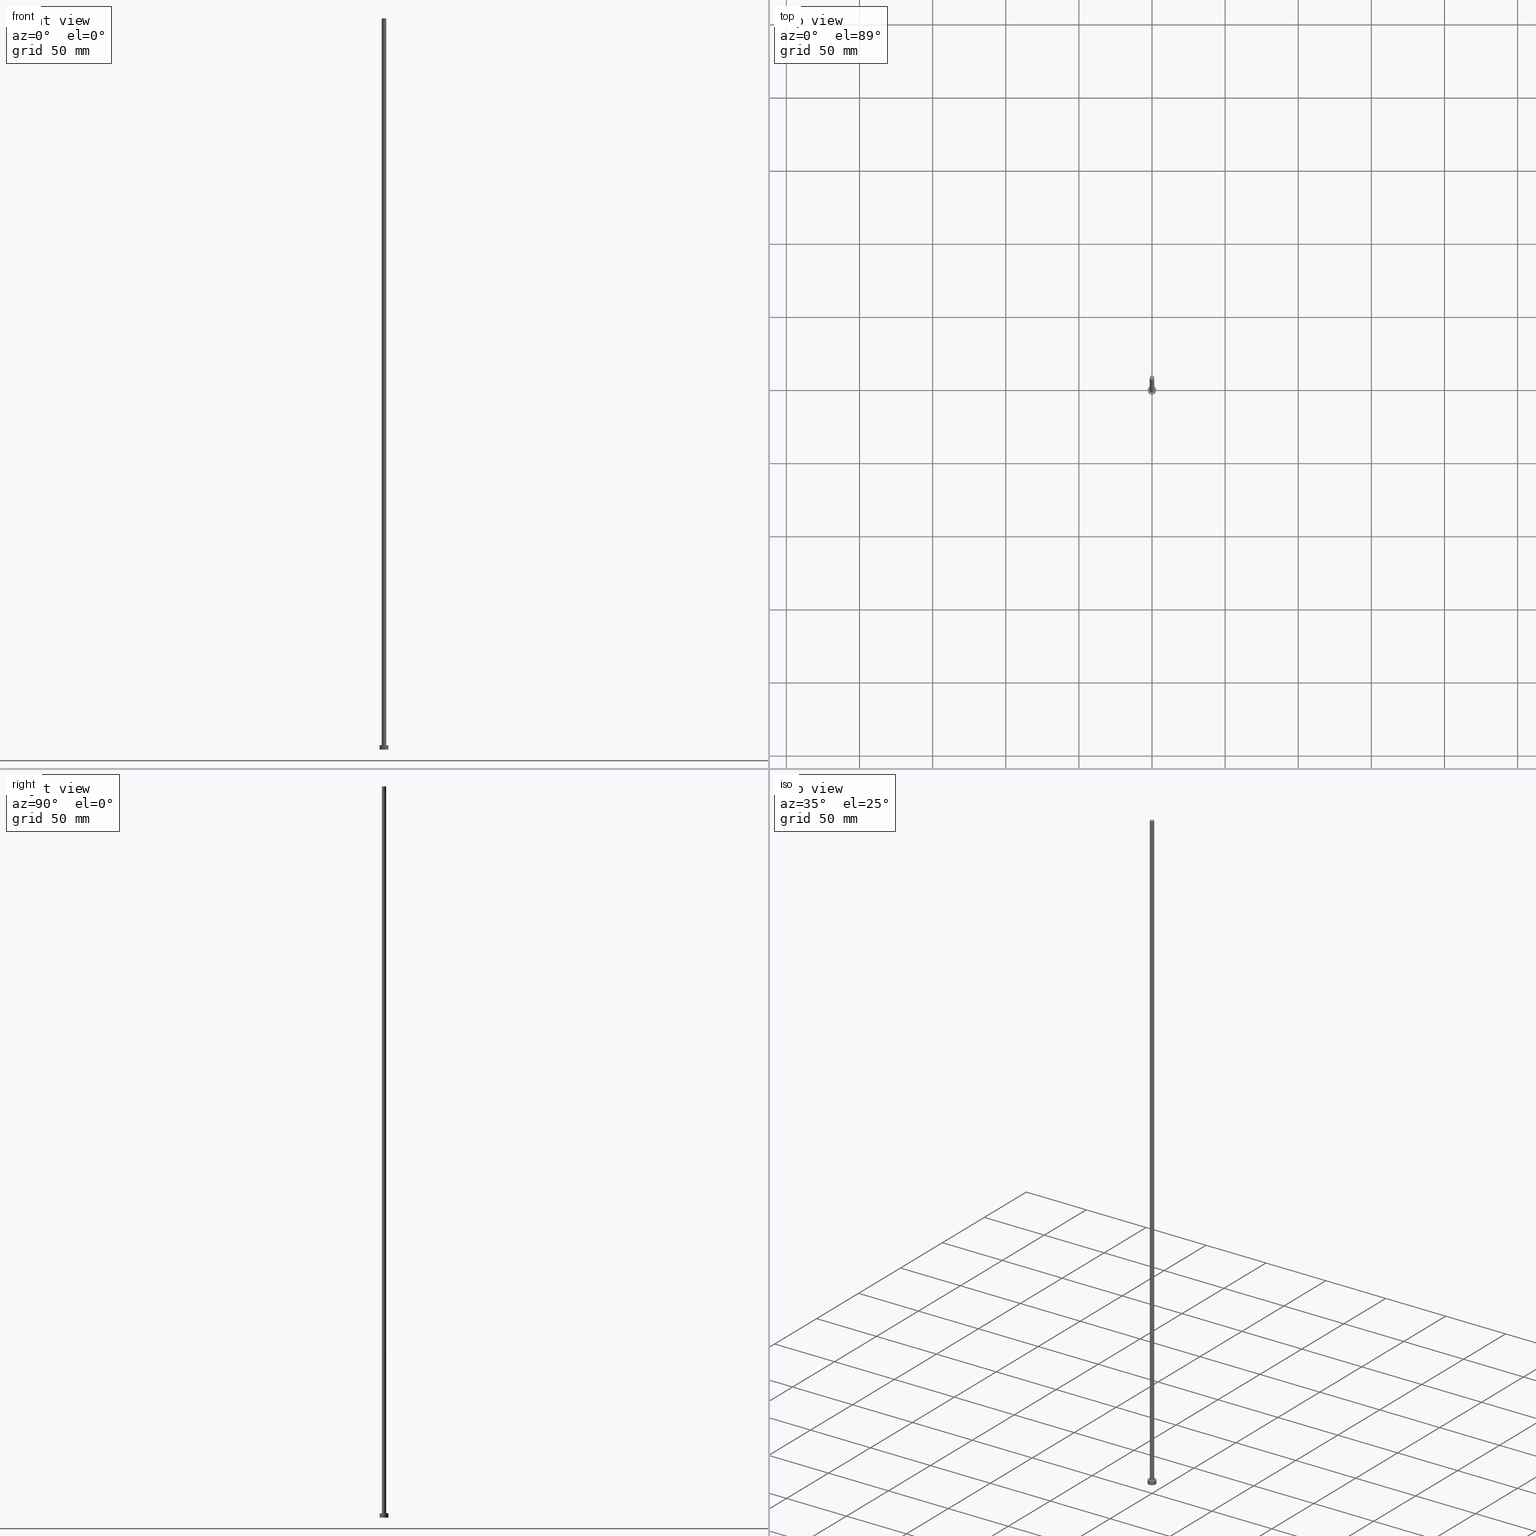
[diagram: canonical four-view strip — front | top / right | iso, engineering-drawing reading convention]
A machine part, canonical four-view strip (front | top / right | iso — engineering-drawing reading convention). The complete STEP part file that produces these views, byte-faithful:
ISO-10303-21;
HEADER;
FILE_DESCRIPTION (( 'STEP AP203' ),
    '1' );
FILE_NAME ('95db.STEP',
    '2026-02-06T12:43:37',
    ( '' ),
    ( '' ),
    'SwSTEP 2.0',
    'SolidWorks 2019',
    '' );
FILE_SCHEMA (( 'CONFIG_CONTROL_DESIGN' ));
ENDSEC;

DATA;
#1 = VERTEX_POINT ( 'NONE', #242 ) ;
#2 = DIRECTION ( 'NONE',  ( 1.000000000000000000, 0.000000000000000000, 0.000000000000000000 ) ) ;
#3 = ORIENTED_EDGE ( 'NONE', *, *, #22, .F. ) ;
#4 = CARTESIAN_POINT ( 'NONE',  ( 1.500000000000000222, 1.836970198721029934E-16, 500.0000000000000000 ) ) ;
#5 = SHAPE_DEFINITION_REPRESENTATION ( #151, #157 ) ;
#6 = COORDINATED_UNIVERSAL_TIME_OFFSET ( 1, 0, .AHEAD. ) ;
#7 = LOCAL_TIME ( 13, 43, 37.00000000000000000, #6 ) ;
#8 = DIRECTION ( 'NONE',  ( 1.000000000000000000, 0.000000000000000000, -0.000000000000000000 ) ) ;
#9 = CALENDAR_DATE ( 2026, 6, 2 ) ;
#10 = EDGE_CURVE ( 'NONE', #184, #132, #147, .T. ) ;
#11 = DIRECTION ( 'NONE',  ( 1.000000000000000000, 0.000000000000000000, 0.000000000000000000 ) ) ;
#12 = CARTESIAN_POINT ( 'NONE',  ( 0.000000000000000000, 0.000000000000000000, 3.000000000000000000 ) ) ;
#13 = CALENDAR_DATE ( 2026, 6, 2 ) ;
#14 = DIRECTION ( 'NONE',  ( 0.000000000000000000, 0.000000000000000000, 1.000000000000000000 ) ) ;
#15 = LOCAL_TIME ( 13, 43, 37.00000000000000000, #241 ) ;
#16 = LINE ( 'NONE', #116, #197 ) ;
#17 = ORIENTED_EDGE ( 'NONE', *, *, #98, .F. ) ;
#18 = ADVANCED_FACE ( 'NONE', ( #130 ), #207, .T. ) ;
#19 = VERTEX_POINT ( 'NONE', #38 ) ;
#20 = ORIENTED_EDGE ( 'NONE', *, *, #55, .F. ) ;
#21 = DIRECTION ( 'NONE',  ( -1.000000000000000000, 0.000000000000000000, 0.000000000000000000 ) ) ;
#22 = EDGE_CURVE ( 'NONE', #221, #254, #16, .T. ) ;
#23 = DIRECTION ( 'NONE',  ( -1.000000000000000000, 0.000000000000000000, 0.000000000000000000 ) ) ;
#24 = DIRECTION ( 'NONE',  ( 0.000000000000000000, 0.000000000000000000, 1.000000000000000000 ) ) ;
#25 = DIRECTION ( 'NONE',  ( -0.000000000000000000, -0.000000000000000000, -1.000000000000000000 ) ) ;
#26 =( NAMED_UNIT ( * ) SI_UNIT ( $, .STERADIAN. ) SOLID_ANGLE_UNIT ( ) );
#27 = ORIENTED_EDGE ( 'NONE', *, *, #22, .T. ) ;
#28 = DIRECTION ( 'NONE',  ( 1.000000000000000000, 0.000000000000000000, 0.000000000000000000 ) ) ;
#29 = CARTESIAN_POINT ( 'NONE',  ( 0.000000000000000000, 0.000000000000000000, 500.0000000000000000 ) ) ;
#30 = PERSON_AND_ORGANIZATION ( #54, #181 ) ;
#31 = AXIS2_PLACEMENT_3D ( 'NONE', #196, #76, #121 ) ;
#32 = VECTOR ( 'NONE', #199, 1000.000000000000000 ) ;
#33 = PERSON_AND_ORGANIZATION ( #54, #181 ) ;
#34 = APPROVAL_STATUS ( 'not_yet_approved' ) ;
#35 = CARTESIAN_POINT ( 'NONE',  ( 0.000000000000000000, 0.000000000000000000, 3.000000000000000000 ) ) ;
#36 = ORIENTED_EDGE ( 'NONE', *, *, #150, .F. ) ;
#37 = AXIS2_PLACEMENT_3D ( 'NONE', #12, #226, #145 ) ;
#38 = CARTESIAN_POINT ( 'NONE',  ( 1.500000000000000222, 1.836970198721029934E-16, 500.0000000000000000 ) ) ;
#39 = ADVANCED_FACE ( 'NONE', ( #160 ), #144, .T. ) ;
#40 = CARTESIAN_POINT ( 'NONE',  ( 0.000000000000000000, 0.000000000000000000, 500.0000000000000000 ) ) ;
#41 = PERSON_AND_ORGANIZATION_ROLE ( 'design_owner' ) ;
#42 = DIRECTION ( 'NONE',  ( -1.000000000000000000, 0.000000000000000000, 0.000000000000000000 ) ) ;
#43 = DIRECTION ( 'NONE',  ( -1.000000000000000000, 0.000000000000000000, 0.000000000000000000 ) ) ;
#44 = APPROVAL ( #186, 'NEUR�EN�' ) ;
#45 = VERTEX_POINT ( 'NONE', #100 ) ;
#46 = FACE_OUTER_BOUND ( 'NONE', #240, .T. ) ;
#47 = DIRECTION ( 'NONE',  ( -0.000000000000000000, -0.000000000000000000, -1.000000000000000000 ) ) ;
#48 = FACE_OUTER_BOUND ( 'NONE', #80, .T. ) ;
#49 = COORDINATED_UNIVERSAL_TIME_OFFSET ( 1, 0, .AHEAD. ) ;
#50 = APPROVAL_STATUS ( 'not_yet_approved' ) ;
#51 = CC_DESIGN_APPROVAL ( #44, ( #173 ) ) ;
#52 = VECTOR ( 'NONE', #47, 1000.000000000000000 ) ;
#53 = DATE_AND_TIME ( #168, #253 ) ;
#54 = PERSON ( 'NEUR�EN�', 'NEUR�EN�', 'NEUR�EN�', ('NEUR�EN�'), ('NEUR�EN�'), ('NEUR�EN�') ) ;
#55 = EDGE_CURVE ( 'NONE', #132, #184, #162, .T. ) ;
#56 = AXIS2_PLACEMENT_3D ( 'NONE', #208, #158, #42 ) ;
#57 = PLANE ( 'NONE',  #171 ) ;
#58 = LINE ( 'NONE', #174, #204 ) ;
#59 = CARTESIAN_POINT ( 'NONE',  ( -1.500000000000000222, 0.000000000000000000, 3.000000000000000000 ) ) ;
#60 = CIRCLE ( 'NONE', #243, 3.000000000000000444 ) ;
#61 = CARTESIAN_POINT ( 'NONE',  ( 0.000000000000000000, 0.000000000000000000, 500.0000000000000000 ) ) ;
#62 = EDGE_CURVE ( 'NONE', #1, #45, #68, .T. ) ;
#63 = EDGE_LOOP ( 'NONE', ( #36, #103, #91, #93 ) ) ;
#64 =( LENGTH_UNIT ( ) NAMED_UNIT ( * ) SI_UNIT ( .MILLI., .METRE. ) );
#65 = ORIENTED_EDGE ( 'NONE', *, *, #214, .F. ) ;
#66 = CC_DESIGN_PERSON_AND_ORGANIZATION_ASSIGNMENT ( #189, #244, ( #75 ) ) ;
#67 = APPROVAL_ROLE ( '' ) ;
#68 = LINE ( 'NONE', #149, #52 ) ;
#69 = FACE_OUTER_BOUND ( 'NONE', #233, .T. ) ;
#70 = CC_DESIGN_SECURITY_CLASSIFICATION ( #173, ( #75 ) ) ;
#71 = CARTESIAN_POINT ( 'NONE',  ( 0.000000000000000000, 0.000000000000000000, 0.000000000000000000 ) ) ;
#72 = AXIS2_PLACEMENT_3D ( 'NONE', #123, #206, #28 ) ;
#73 = EDGE_LOOP ( 'NONE', ( #165, #218 ) ) ;
#74 = CARTESIAN_POINT ( 'NONE',  ( 1.500000000000000222, 1.836970198721029934E-16, 3.000000000000000000 ) ) ;
#75 = PRODUCT_DEFINITION_FORMATION_WITH_SPECIFIED_SOURCE ( 'LIBOVOLN�', '', #213, .NOT_KNOWN. ) ;
#76 = DIRECTION ( 'NONE',  ( 0.000000000000000000, 0.000000000000000000, 1.000000000000000000 ) ) ;
#77 = ORIENTED_EDGE ( 'NONE', *, *, #192, .F. ) ;
#78 = LINE ( 'NONE', #4, #32 ) ;
#79 = CYLINDRICAL_SURFACE ( 'NONE', #212, 1.500000000000000222 ) ;
#80 = EDGE_LOOP ( 'NONE', ( #65, #27, #198, #142 ) ) ;
#81 = DIRECTION ( 'NONE',  ( 1.000000000000000000, 0.000000000000000000, 0.000000000000000000 ) ) ;
#82 = CC_DESIGN_PERSON_AND_ORGANIZATION_ASSIGNMENT ( #124, #245, ( #220 ) ) ;
#83 = AXIS2_PLACEMENT_3D ( 'NONE', #29, #95, #230 ) ;
#84 = PERSON_AND_ORGANIZATION_ROLE ( 'classification_officer' ) ;
#85 = EDGE_CURVE ( 'NONE', #45, #254, #248, .T. ) ;
#86 = CIRCLE ( 'NONE', #175, 1.500000000000000222 ) ;
#87 = DIRECTION ( 'NONE',  ( 1.000000000000000000, 0.000000000000000000, 0.000000000000000000 ) ) ;
#88 = PRODUCT_RELATED_PRODUCT_CATEGORY ( 'detail', '', ( #213 ) ) ;
#89 = ORIENTED_EDGE ( 'NONE', *, *, #55, .T. ) ;
#90 = CLOSED_SHELL ( 'NONE', ( #251, #131, #39, #249, #129, #182, #18 ) ) ;
#91 = ORIENTED_EDGE ( 'NONE', *, *, #10, .T. ) ;
#92 = DIRECTION ( 'NONE',  ( 0.000000000000000000, 0.000000000000000000, 1.000000000000000000 ) ) ;
#93 = ORIENTED_EDGE ( 'NONE', *, *, #200, .F. ) ;
#94 = CARTESIAN_POINT ( 'NONE',  ( 0.000000000000000000, 0.000000000000000000, 3.000000000000000000 ) ) ;
#95 = DIRECTION ( 'NONE',  ( 0.000000000000000000, 0.000000000000000000, 1.000000000000000000 ) ) ;
#96 = ORIENTED_EDGE ( 'NONE', *, *, #107, .F. ) ;
#97 = APPLICATION_PROTOCOL_DEFINITION ( 'international standard', 'config_control_design', 1994, #111 ) ;
#98 = EDGE_CURVE ( 'NONE', #254, #45, #219, .T. ) ;
#99 = CARTESIAN_POINT ( 'NONE',  ( -1.500000000000000222, 0.000000000000000000, 500.0000000000000000 ) ) ;
#100 = CARTESIAN_POINT ( 'NONE',  ( -3.000000000000000444, 0.000000000000000000, 0.000000000000000000 ) ) ;
#101 = AXIS2_PLACEMENT_3D ( 'NONE', #239, #25, #43 ) ;
#102 = ORIENTED_EDGE ( 'NONE', *, *, #200, .T. ) ;
#103 = ORIENTED_EDGE ( 'NONE', *, *, #192, .T. ) ;
#104 = APPROVAL_DATE_TIME ( #146, #159 ) ;
#105 = APPROVAL_DATE_TIME ( #148, #44 ) ;
#106 = DATE_AND_TIME ( #13, #191 ) ;
#107 = EDGE_CURVE ( 'NONE', #1, #221, #60, .T. ) ;
#108 = APPROVAL_ROLE ( '' ) ;
#109 = DIRECTION ( 'NONE',  ( 0.000000000000000000, 0.000000000000000000, 1.000000000000000000 ) ) ;
#110 = CIRCLE ( 'NONE', #250, 1.500000000000000222 ) ;
#111 = APPLICATION_CONTEXT ( 'configuration controlled 3d designs of mechanical parts and assemblies' ) ;
#112 = ORIENTED_EDGE ( 'NONE', *, *, #150, .T. ) ;
#113 =( GEOMETRIC_REPRESENTATION_CONTEXT ( 3 ) GLOBAL_UNCERTAINTY_ASSIGNED_CONTEXT ( ( #134 ) ) GLOBAL_UNIT_ASSIGNED_CONTEXT ( ( #64, #222, #26 ) ) REPRESENTATION_CONTEXT ( 'NONE', 'WORKASPACE' ) );
#114 = APPLICATION_CONTEXT ( 'configuration controlled 3d designs of mechanical parts and assemblies' ) ;
#115 = CC_DESIGN_PERSON_AND_ORGANIZATION_ASSIGNMENT ( #236, #41, ( #213 ) ) ;
#116 = CARTESIAN_POINT ( 'NONE',  ( 3.000000000000000444, 3.673940397442060361E-16, 3.000000000000000000 ) ) ;
#117 = CARTESIAN_POINT ( 'NONE',  ( 3.000000000000000444, 3.673940397442060361E-16, 3.000000000000000000 ) ) ;
#118 = APPLICATION_PROTOCOL_DEFINITION ( 'international standard', 'config_control_design', 1994, #114 ) ;
#119 = DIRECTION ( 'NONE',  ( 1.000000000000000000, 0.000000000000000000, 0.000000000000000000 ) ) ;
#120 = ORIENTED_EDGE ( 'NONE', *, *, #85, .F. ) ;
#121 = DIRECTION ( 'NONE',  ( 1.000000000000000000, 0.000000000000000000, 0.000000000000000000 ) ) ;
#122 = CIRCLE ( 'NONE', #31, 3.000000000000000444 ) ;
#123 = CARTESIAN_POINT ( 'NONE',  ( 0.000000000000000000, 0.000000000000000000, 0.000000000000000000 ) ) ;
#124 = PERSON_AND_ORGANIZATION ( #54, #181 ) ;
#125 = DATE_TIME_ROLE ( 'creation_date' ) ;
#126 = CALENDAR_DATE ( 2026, 6, 2 ) ;
#127 = MANIFOLD_SOLID_BREP ( 'P�idat vysunut�m3', #90 ) ;
#128 = AXIS2_PLACEMENT_3D ( 'NONE', #156, #143, #21 ) ;
#129 = ADVANCED_FACE ( 'NONE', ( #69 ), #57, .F. ) ;
#130 = FACE_OUTER_BOUND ( 'NONE', #203, .T. ) ;
#131 = ADVANCED_FACE ( 'NONE', ( #48 ), #202, .T. ) ;
#132 = VERTEX_POINT ( 'NONE', #59 ) ;
#133 = CC_DESIGN_PERSON_AND_ORGANIZATION_ASSIGNMENT ( #169, #84, ( #173 ) ) ;
#134 = UNCERTAINTY_MEASURE_WITH_UNIT (LENGTH_MEASURE( 1.000000000000000082E-05 ), #64, 'distance_accuracy_value', 'NONE');
#135 = AXIS2_PLACEMENT_3D ( 'NONE', #170, #14, #87 ) ;
#136 = ORIENTED_EDGE ( 'NONE', *, *, #10, .F. ) ;
#137 = CC_DESIGN_DATE_AND_TIME_ASSIGNMENT ( #190, #211, ( #173 ) ) ;
#138 = CC_DESIGN_APPROVAL ( #228, ( #75 ) ) ;
#139 = FACE_BOUND ( 'NONE', #141, .T. ) ;
#140 = DIRECTION ( 'NONE',  ( 0.000000000000000000, 0.000000000000000000, 1.000000000000000000 ) ) ;
#141 = EDGE_LOOP ( 'NONE', ( #20, #136 ) ) ;
#142 = ORIENTED_EDGE ( 'NONE', *, *, #62, .F. ) ;
#143 = DIRECTION ( 'NONE',  ( -0.000000000000000000, -0.000000000000000000, -1.000000000000000000 ) ) ;
#144 = CYLINDRICAL_SURFACE ( 'NONE', #101, 3.000000000000000444 ) ;
#145 = DIRECTION ( 'NONE',  ( 1.000000000000000000, 0.000000000000000000, 0.000000000000000000 ) ) ;
#146 = DATE_AND_TIME ( #126, #15 ) ;
#147 = CIRCLE ( 'NONE', #37, 1.500000000000000222 ) ;
#148 = DATE_AND_TIME ( #224, #161 ) ;
#149 = CARTESIAN_POINT ( 'NONE',  ( -3.000000000000000444, 0.000000000000000000, 3.000000000000000000 ) ) ;
#150 = EDGE_CURVE ( 'NONE', #19, #195, #110, .T. ) ;
#151 = PRODUCT_DEFINITION_SHAPE ( 'NONE', 'NONE',  #220 ) ;
#152 = AXIS2_PLACEMENT_3D ( 'NONE', #183, #232, #81 ) ;
#153 = DIRECTION ( 'NONE',  ( 0.000000000000000000, 0.000000000000000000, 1.000000000000000000 ) ) ;
#154 = APPROVAL_PERSON_ORGANIZATION ( #30, #44, #67 ) ;
#155 = CC_DESIGN_APPROVAL ( #159, ( #220 ) ) ;
#156 = CARTESIAN_POINT ( 'NONE',  ( 0.000000000000000000, 0.000000000000000000, 500.0000000000000000 ) ) ;
#157 = ADVANCED_BREP_SHAPE_REPRESENTATION ( '95db', ( #127, #152 ), #113 ) ;
#158 = DIRECTION ( 'NONE',  ( -0.000000000000000000, -0.000000000000000000, -1.000000000000000000 ) ) ;
#159 = APPROVAL ( #34, 'NEUR�EN�' ) ;
#160 = FACE_OUTER_BOUND ( 'NONE', #176, .T. ) ;
#161 = LOCAL_TIME ( 13, 43, 37.00000000000000000, #185 ) ;
#162 = CIRCLE ( 'NONE', #188, 1.500000000000000222 ) ;
#163 = FACE_OUTER_BOUND ( 'NONE', #73, .T. ) ;
#164 = DIRECTION ( 'NONE',  ( 1.000000000000000000, 0.000000000000000000, 0.000000000000000000 ) ) ;
#165 = ORIENTED_EDGE ( 'NONE', *, *, #107, .T. ) ;
#166 = DIRECTION ( 'NONE',  ( 0.000000000000000000, 0.000000000000000000, 1.000000000000000000 ) ) ;
#167 = PERSON_AND_ORGANIZATION_ROLE ( 'design_supplier' ) ;
#168 = CALENDAR_DATE ( 2026, 6, 2 ) ;
#169 = PERSON_AND_ORGANIZATION ( #54, #181 ) ;
#170 = CARTESIAN_POINT ( 'NONE',  ( 0.000000000000000000, 0.000000000000000000, 0.000000000000000000 ) ) ;
#171 = AXIS2_PLACEMENT_3D ( 'NONE', #71, #153, #8 ) ;
#172 = DESIGN_CONTEXT ( 'detailed design', #114, 'design' ) ;
#173 = SECURITY_CLASSIFICATION ( '', '', #225 ) ;
#174 = CARTESIAN_POINT ( 'NONE',  ( -1.500000000000000222, 0.000000000000000000, 500.0000000000000000 ) ) ;
#175 = AXIS2_PLACEMENT_3D ( 'NONE', #61, #166, #119 ) ;
#176 = EDGE_LOOP ( 'NONE', ( #3, #96, #216, #237 ) ) ;
#177 = MECHANICAL_CONTEXT ( 'NONE', #111, 'mechanical' ) ;
#178 = DIRECTION ( 'NONE',  ( -0.000000000000000000, -0.000000000000000000, -1.000000000000000000 ) ) ;
#179 = FACE_OUTER_BOUND ( 'NONE', #63, .T. ) ;
#180 = CARTESIAN_POINT ( 'NONE',  ( 0.000000000000000000, 0.000000000000000000, 3.000000000000000000 ) ) ;
#181 = ORGANIZATION ( 'NEUR�EN�', 'NEUR�EN�', '' ) ;
#182 = ADVANCED_FACE ( 'NONE', ( #46 ), #79, .T. ) ;
#183 = CARTESIAN_POINT ( 'NONE',  ( 0.000000000000000000, 0.000000000000000000, 0.000000000000000000 ) ) ;
#184 = VERTEX_POINT ( 'NONE', #74 ) ;
#185 = COORDINATED_UNIVERSAL_TIME_OFFSET ( 1, 0, .AHEAD. ) ;
#186 = APPROVAL_STATUS ( 'not_yet_approved' ) ;
#187 = CC_DESIGN_DATE_AND_TIME_ASSIGNMENT ( #106, #125, ( #220 ) ) ;
#188 = AXIS2_PLACEMENT_3D ( 'NONE', #180, #140, #164 ) ;
#189 = PERSON_AND_ORGANIZATION ( #54, #181 ) ;
#190 = DATE_AND_TIME ( #9, #7 ) ;
#191 = LOCAL_TIME ( 13, 43, 37.00000000000000000, #49 ) ;
#192 = EDGE_CURVE ( 'NONE', #19, #184, #78, .T. ) ;
#193 = ORIENTED_EDGE ( 'NONE', *, *, #210, .F. ) ;
#194 = ORIENTED_EDGE ( 'NONE', *, *, #210, .T. ) ;
#195 = VERTEX_POINT ( 'NONE', #99 ) ;
#196 = CARTESIAN_POINT ( 'NONE',  ( 0.000000000000000000, 0.000000000000000000, 3.000000000000000000 ) ) ;
#197 = VECTOR ( 'NONE', #178, 1000.000000000000000 ) ;
#198 = ORIENTED_EDGE ( 'NONE', *, *, #98, .T. ) ;
#199 = DIRECTION ( 'NONE',  ( -0.000000000000000000, -0.000000000000000000, -1.000000000000000000 ) ) ;
#200 = EDGE_CURVE ( 'NONE', #195, #132, #58, .T. ) ;
#201 = CARTESIAN_POINT ( 'NONE',  ( 3.000000000000000444, 3.673940397442060361E-16, 0.000000000000000000 ) ) ;
#202 = CYLINDRICAL_SURFACE ( 'NONE', #56, 3.000000000000000444 ) ;
#203 = EDGE_LOOP ( 'NONE', ( #194, #112 ) ) ;
#204 = VECTOR ( 'NONE', #234, 1000.000000000000000 ) ;
#205 = PLANE ( 'NONE',  #235 ) ;
#206 = DIRECTION ( 'NONE',  ( 0.000000000000000000, 0.000000000000000000, 1.000000000000000000 ) ) ;
#207 = PLANE ( 'NONE',  #83 ) ;
#208 = CARTESIAN_POINT ( 'NONE',  ( 0.000000000000000000, 0.000000000000000000, 3.000000000000000000 ) ) ;
#209 = APPROVAL_DATE_TIME ( #53, #228 ) ;
#210 = EDGE_CURVE ( 'NONE', #195, #19, #86, .T. ) ;
#211 = DATE_TIME_ROLE ( 'classification_date' ) ;
#212 = AXIS2_PLACEMENT_3D ( 'NONE', #40, #238, #23 ) ;
#213 = PRODUCT ( '95db', '95db', '', ( #177 ) ) ;
#214 = EDGE_CURVE ( 'NONE', #221, #1, #122, .T. ) ;
#215 = APPROVAL_PERSON_ORGANIZATION ( #33, #159, #108 ) ;
#216 = ORIENTED_EDGE ( 'NONE', *, *, #62, .T. ) ;
#217 = CYLINDRICAL_SURFACE ( 'NONE', #128, 1.500000000000000222 ) ;
#218 = ORIENTED_EDGE ( 'NONE', *, *, #214, .T. ) ;
#219 = CIRCLE ( 'NONE', #135, 3.000000000000000444 ) ;
#220 = PRODUCT_DEFINITION ( 'NEZN�M�', '', #75, #172 ) ;
#221 = VERTEX_POINT ( 'NONE', #117 ) ;
#222 =( NAMED_UNIT ( * ) PLANE_ANGLE_UNIT ( ) SI_UNIT ( $, .RADIAN. ) );
#223 = APPROVAL_PERSON_ORGANIZATION ( #229, #228, #246 ) ;
#224 = CALENDAR_DATE ( 2026, 6, 2 ) ;
#225 = SECURITY_CLASSIFICATION_LEVEL ( 'unclassified' ) ;
#226 = DIRECTION ( 'NONE',  ( 0.000000000000000000, 0.000000000000000000, 1.000000000000000000 ) ) ;
#227 = COORDINATED_UNIVERSAL_TIME_OFFSET ( 1, 0, .AHEAD. ) ;
#228 = APPROVAL ( #50, 'NEUR�EN�' ) ;
#229 = PERSON_AND_ORGANIZATION ( #54, #181 ) ;
#230 = DIRECTION ( 'NONE',  ( 1.000000000000000000, 0.000000000000000000, -0.000000000000000000 ) ) ;
#231 = CARTESIAN_POINT ( 'NONE',  ( 0.000000000000000000, 0.000000000000000000, 500.0000000000000000 ) ) ;
#232 = DIRECTION ( 'NONE',  ( 0.000000000000000000, 0.000000000000000000, 1.000000000000000000 ) ) ;
#233 = EDGE_LOOP ( 'NONE', ( #120, #17 ) ) ;
#234 = DIRECTION ( 'NONE',  ( -0.000000000000000000, -0.000000000000000000, -1.000000000000000000 ) ) ;
#235 = AXIS2_PLACEMENT_3D ( 'NONE', #94, #92, #252 ) ;
#236 = PERSON_AND_ORGANIZATION ( #54, #181 ) ;
#237 = ORIENTED_EDGE ( 'NONE', *, *, #85, .T. ) ;
#238 = DIRECTION ( 'NONE',  ( -0.000000000000000000, -0.000000000000000000, -1.000000000000000000 ) ) ;
#239 = CARTESIAN_POINT ( 'NONE',  ( 0.000000000000000000, 0.000000000000000000, 3.000000000000000000 ) ) ;
#240 = EDGE_LOOP ( 'NONE', ( #77, #193, #102, #89 ) ) ;
#241 = COORDINATED_UNIVERSAL_TIME_OFFSET ( 1, 0, .AHEAD. ) ;
#242 = CARTESIAN_POINT ( 'NONE',  ( -3.000000000000000444, 0.000000000000000000, 3.000000000000000000 ) ) ;
#243 = AXIS2_PLACEMENT_3D ( 'NONE', #35, #109, #11 ) ;
#244 = PERSON_AND_ORGANIZATION_ROLE ( 'creator' ) ;
#245 = PERSON_AND_ORGANIZATION_ROLE ( 'creator' ) ;
#246 = APPROVAL_ROLE ( '' ) ;
#247 = PERSON_AND_ORGANIZATION ( #54, #181 ) ;
#248 = CIRCLE ( 'NONE', #72, 3.000000000000000444 ) ;
#249 = ADVANCED_FACE ( 'NONE', ( #139, #163 ), #205, .T. ) ;
#250 = AXIS2_PLACEMENT_3D ( 'NONE', #231, #24, #2 ) ;
#251 = ADVANCED_FACE ( 'NONE', ( #179 ), #217, .T. ) ;
#252 = DIRECTION ( 'NONE',  ( 1.000000000000000000, 0.000000000000000000, -0.000000000000000000 ) ) ;
#253 = LOCAL_TIME ( 13, 43, 37.00000000000000000, #227 ) ;
#254 = VERTEX_POINT ( 'NONE', #201 ) ;
#255 = CC_DESIGN_PERSON_AND_ORGANIZATION_ASSIGNMENT ( #247, #167, ( #75 ) ) ;
ENDSEC;
END-ISO-10303-21;
